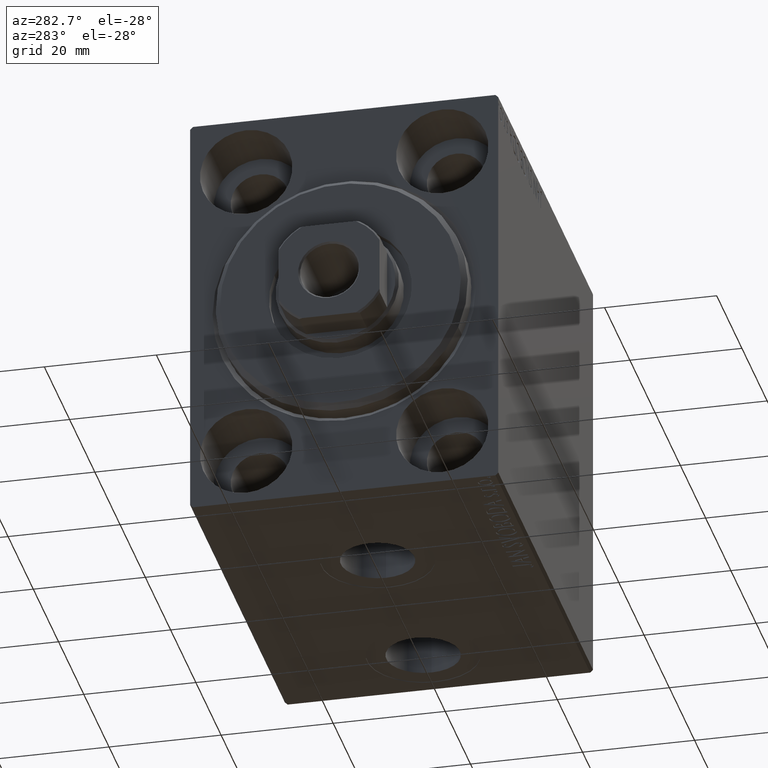
[diagram: clean part render]
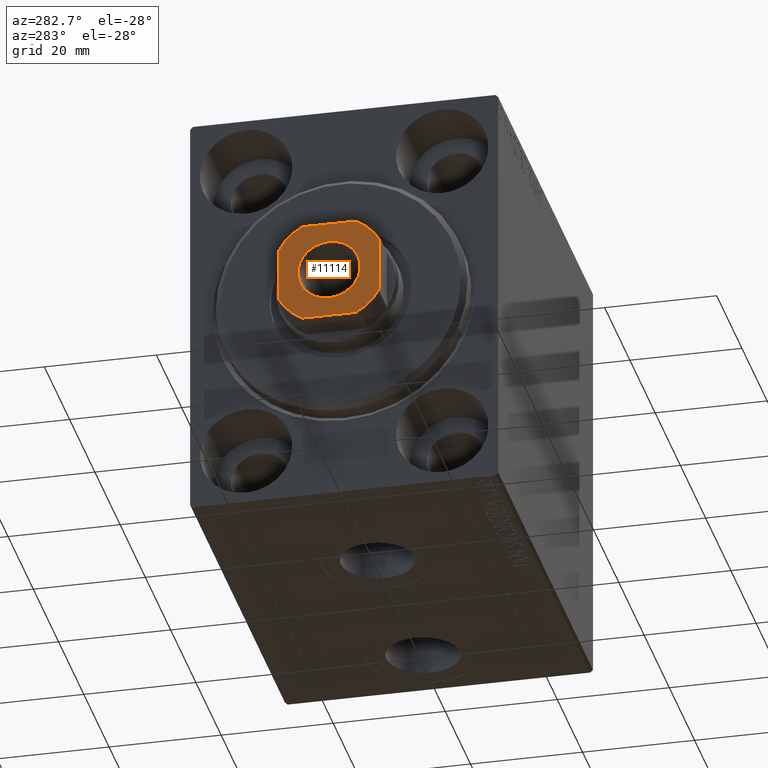
[diagram: same view with one face highlighted and labeled with its STEP entity id]
A machine part, auxiliary view. The second image highlights one B-rep face of the part: STEP entity #11114.
In plain terms, the highlighted planar face has unit normal (-1, 0, 0).
Its self-contained STEP definition (entity closure, byte-faithful):
#656 = CARTESIAN_POINT ( 'NONE',  ( 5.550000000000013145, 0.000000000000000000, 77.00000000000001421 ) ) ;
#798 = VERTEX_POINT ( 'NONE', #3233 ) ;
#963 = CARTESIAN_POINT ( 'NONE',  ( -8.999999999999998224, -4.799999999999999822, 77.00000000000001421 ) ) ;
#1651 = DIRECTION ( 'NONE',  ( 1.000000000000000000, 0.000000000000000000, 0.000000000000000000 ) ) ;
#2097 = EDGE_CURVE ( 'NONE', #32099, #20257, #7939, .T. ) ;
#2132 = CARTESIAN_POINT ( 'NONE',  ( -4.799999999999995381, -9.000000000000001776, 77.00000000000001421 ) ) ;
#2257 = EDGE_CURVE ( 'NONE', #3922, #36829, #15747, .T. ) ;
#3233 = CARTESIAN_POINT ( 'NONE',  ( -4.799999999999990941, 8.999999999999998224, 77.00000000000001421 ) ) ;
#3922 = VERTEX_POINT ( 'NONE', #12204 ) ;
#4064 = DIRECTION ( 'NONE',  ( 1.000000000000000000, 0.000000000000000000, 0.000000000000000000 ) ) ;
#5411 = CARTESIAN_POINT ( 'NONE',  ( 0.000000000000000000, 0.000000000000000000, 77.00000000000001421 ) ) ;
#5553 = PLANE ( 'NONE',  #38021 ) ;
#5590 = LINE ( 'NONE', #42963, #38618 ) ;
#5610 = ORIENTED_EDGE ( 'NONE', *, *, #40573, .T. ) ;
#5935 = CIRCLE ( 'NONE', #20870, 5.550000000000013145 ) ;
#6366 = ORIENTED_EDGE ( 'NONE', *, *, #34000, .T. ) ;
#7366 = EDGE_CURVE ( 'NONE', #7811, #3922, #5590, .T. ) ;
#7369 = EDGE_CURVE ( 'NONE', #20257, #32099, #5935, .T. ) ;
#7811 = VERTEX_POINT ( 'NONE', #2132 ) ;
#7939 = CIRCLE ( 'NONE', #13635, 5.550000000000013145 ) ;
#8243 = CIRCLE ( 'NONE', #33129, 10.20000000000000462 ) ;
#8881 = DIRECTION ( 'NONE',  ( 1.000000000000000000, 0.000000000000000000, 0.000000000000000000 ) ) ;
#9389 = ORIENTED_EDGE ( 'NONE', *, *, #41183, .T. ) ;
#9592 = CARTESIAN_POINT ( 'NONE',  ( 0.000000000000000000, 0.000000000000000000, 77.00000000000001421 ) ) ;
#10686 = ORIENTED_EDGE ( 'NONE', *, *, #33796, .T. ) ;
#11114 = ADVANCED_FACE ( 'NONE', ( #39141, #15778 ), #5553, .T. ) ;
#11270 = CIRCLE ( 'NONE', #14106, 10.19999999999999929 ) ;
#12204 = CARTESIAN_POINT ( 'NONE',  ( 4.800000000000006928, -9.000000000000001776, 77.00000000000001421 ) ) ;
#13183 = CARTESIAN_POINT ( 'NONE',  ( -9.000000000000001776, 8.999999999999998224, 77.00000000000001421 ) ) ;
#13635 = AXIS2_PLACEMENT_3D ( 'NONE', #23377, #27366, #33831 ) ;
#13803 = DIRECTION ( 'NONE',  ( 1.927470528863119049E-16, -1.000000000000000000, 0.000000000000000000 ) ) ;
#14106 = AXIS2_PLACEMENT_3D ( 'NONE', #41126, #31327, #27977 ) ;
#14285 = DIRECTION ( 'NONE',  ( -0.000000000000000000, 0.000000000000000000, 1.000000000000000000 ) ) ;
#14840 = EDGE_CURVE ( 'NONE', #32795, #32657, #8243, .T. ) ;
#15200 = DIRECTION ( 'NONE',  ( -0.000000000000000000, 0.000000000000000000, 1.000000000000000000 ) ) ;
#15355 = VECTOR ( 'NONE', #39884, 1000.000000000000000 ) ;
#15747 = CIRCLE ( 'NONE', #40634, 10.20000000000000462 ) ;
#15778 = FACE_OUTER_BOUND ( 'NONE', #34021, .T. ) ;
#16484 = DIRECTION ( 'NONE',  ( 1.000000000000000000, 0.000000000000000000, 0.000000000000000000 ) ) ;
#17911 = VERTEX_POINT ( 'NONE', #963 ) ;
#19530 = DIRECTION ( 'NONE',  ( -1.927470528863119049E-16, 1.000000000000000000, -0.000000000000000000 ) ) ;
#19670 = CARTESIAN_POINT ( 'NONE',  ( -9.000000000000001776, 4.799999999999986500, 77.00000000000001421 ) ) ;
#19826 = LINE ( 'NONE', #20042, #33928 ) ;
#20040 = DIRECTION ( 'NONE',  ( 0.000000000000000000, -0.000000000000000000, -1.000000000000000000 ) ) ;
#20042 = CARTESIAN_POINT ( 'NONE',  ( -9.000000000000001776, 8.999999999999998224, 77.00000000000001421 ) ) ;
#20124 = EDGE_LOOP ( 'NONE', ( #21970, #39954 ) ) ;
#20257 = VERTEX_POINT ( 'NONE', #656 ) ;
#20870 = AXIS2_PLACEMENT_3D ( 'NONE', #9592, #20040, #22725 ) ;
#21577 = DIRECTION ( 'NONE',  ( -0.000000000000000000, 0.000000000000000000, 1.000000000000000000 ) ) ;
#21970 = ORIENTED_EDGE ( 'NONE', *, *, #7369, .T. ) ;
#22725 = DIRECTION ( 'NONE',  ( 1.000000000000000000, 0.000000000000000000, 0.000000000000000000 ) ) ;
#22880 = CARTESIAN_POINT ( 'NONE',  ( 8.999999999999998224, 8.999999999999998224, 77.00000000000001421 ) ) ;
#22940 = EDGE_CURVE ( 'NONE', #43048, #17911, #19826, .T. ) ;
#23377 = CARTESIAN_POINT ( 'NONE',  ( 0.000000000000000000, 0.000000000000000000, 77.00000000000001421 ) ) ;
#24429 = ORIENTED_EDGE ( 'NONE', *, *, #22940, .T. ) ;
#26634 = CARTESIAN_POINT ( 'NONE',  ( 4.800000000000012257, 8.999999999999998224, 77.00000000000001421 ) ) ;
#27366 = DIRECTION ( 'NONE',  ( 0.000000000000000000, -0.000000000000000000, -1.000000000000000000 ) ) ;
#27977 = DIRECTION ( 'NONE',  ( 1.000000000000000000, 0.000000000000000000, 0.000000000000000000 ) ) ;
#28076 = CARTESIAN_POINT ( 'NONE',  ( 0.000000000000000000, 0.000000000000000000, 77.00000000000001421 ) ) ;
#28697 = CARTESIAN_POINT ( 'NONE',  ( 0.000000000000000000, 0.000000000000000000, 77.00000000000001421 ) ) ;
#30947 = DIRECTION ( 'NONE',  ( -0.000000000000000000, 0.000000000000000000, 1.000000000000000000 ) ) ;
#31327 = DIRECTION ( 'NONE',  ( -0.000000000000000000, 0.000000000000000000, 1.000000000000000000 ) ) ;
#31798 = ORIENTED_EDGE ( 'NONE', *, *, #2257, .T. ) ;
#31828 = CARTESIAN_POINT ( 'NONE',  ( -5.550000000000013145, 6.796789735267826558E-16, 77.00000000000001421 ) ) ;
#32099 = VERTEX_POINT ( 'NONE', #31828 ) ;
#32657 = VERTEX_POINT ( 'NONE', #26634 ) ;
#32795 = VERTEX_POINT ( 'NONE', #35494 ) ;
#33129 = AXIS2_PLACEMENT_3D ( 'NONE', #28076, #14285, #4064 ) ;
#33295 = CIRCLE ( 'NONE', #40405, 10.19999999999999396 ) ;
#33796 = EDGE_CURVE ( 'NONE', #32657, #798, #40106, .T. ) ;
#33831 = DIRECTION ( 'NONE',  ( 1.000000000000000000, 0.000000000000000000, 0.000000000000000000 ) ) ;
#33871 = VECTOR ( 'NONE', #19530, 1000.000000000000000 ) ;
#33928 = VECTOR ( 'NONE', #13803, 1000.000000000000000 ) ;
#34000 = EDGE_CURVE ( 'NONE', #36829, #32795, #43348, .T. ) ;
#34021 = EDGE_LOOP ( 'NONE', ( #6366, #42438, #10686, #9389, #24429, #5610, #40186, #31798 ) ) ;
#34278 = CARTESIAN_POINT ( 'NONE',  ( 0.000000000000000000, 0.000000000000000000, 77.00000000000001421 ) ) ;
#35494 = CARTESIAN_POINT ( 'NONE',  ( 8.999999999999998224, 4.800000000000010481, 77.00000000000001421 ) ) ;
#36829 = VERTEX_POINT ( 'NONE', #43452 ) ;
#38021 = AXIS2_PLACEMENT_3D ( 'NONE', #28697, #21577, #8881 ) ;
#38618 = VECTOR ( 'NONE', #16484, 1000.000000000000000 ) ;
#39141 = FACE_BOUND ( 'NONE', #20124, .T. ) ;
#39884 = DIRECTION ( 'NONE',  ( -1.000000000000000000, -0.000000000000000000, -0.000000000000000000 ) ) ;
#39954 = ORIENTED_EDGE ( 'NONE', *, *, #2097, .T. ) ;
#40106 = LINE ( 'NONE', #13183, #15355 ) ;
#40186 = ORIENTED_EDGE ( 'NONE', *, *, #7366, .T. ) ;
#40405 = AXIS2_PLACEMENT_3D ( 'NONE', #34278, #30947, #41179 ) ;
#40573 = EDGE_CURVE ( 'NONE', #17911, #7811, #11270, .T. ) ;
#40634 = AXIS2_PLACEMENT_3D ( 'NONE', #5411, #15200, #1651 ) ;
#41126 = CARTESIAN_POINT ( 'NONE',  ( 0.000000000000000000, 0.000000000000000000, 77.00000000000001421 ) ) ;
#41179 = DIRECTION ( 'NONE',  ( 1.000000000000000000, 0.000000000000000000, 0.000000000000000000 ) ) ;
#41183 = EDGE_CURVE ( 'NONE', #798, #43048, #33295, .T. ) ;
#42438 = ORIENTED_EDGE ( 'NONE', *, *, #14840, .T. ) ;
#42963 = CARTESIAN_POINT ( 'NONE',  ( -8.999999999999998224, -9.000000000000001776, 77.00000000000001421 ) ) ;
#43048 = VERTEX_POINT ( 'NONE', #19670 ) ;
#43348 = LINE ( 'NONE', #22880, #33871 ) ;
#43452 = CARTESIAN_POINT ( 'NONE',  ( 9.000000000000001776, -4.800000000000007816, 77.00000000000001421 ) ) ;